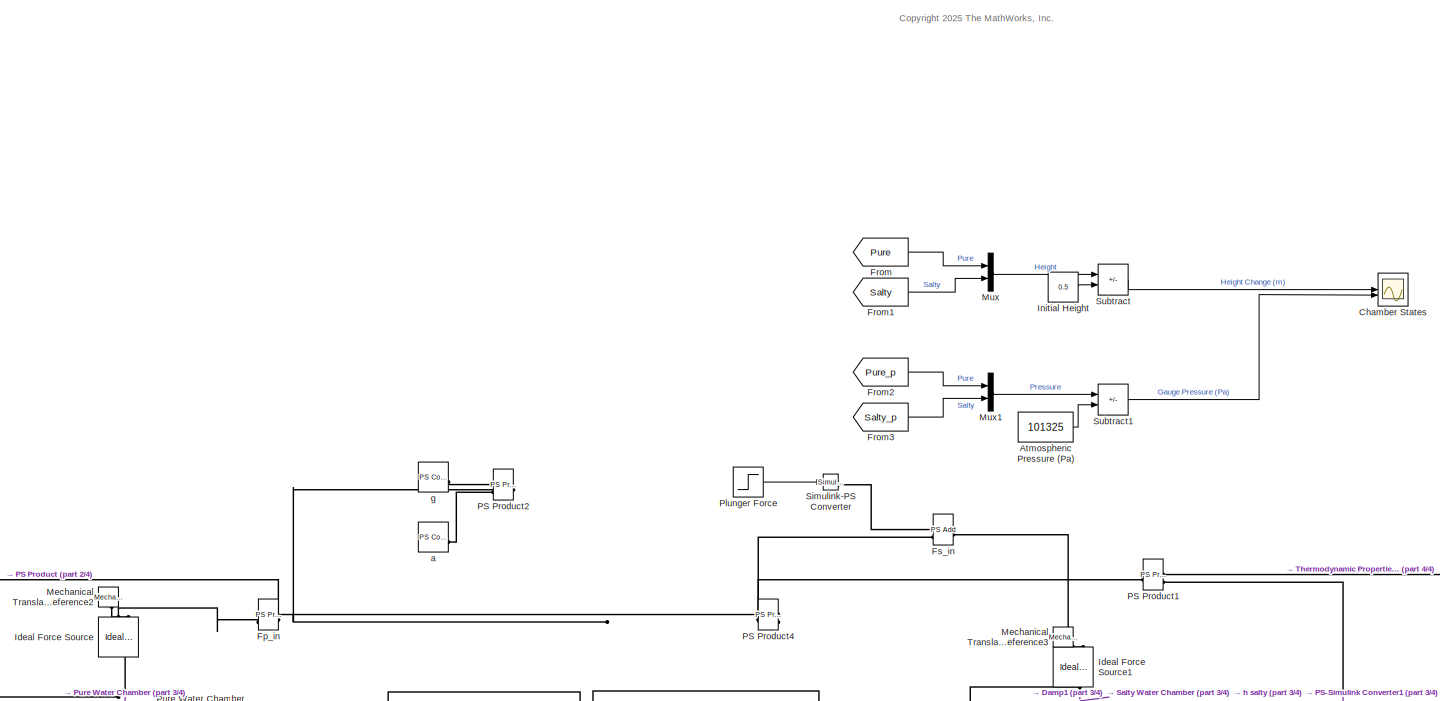
[diagram: root canvas - part 1/4, full width, top band]
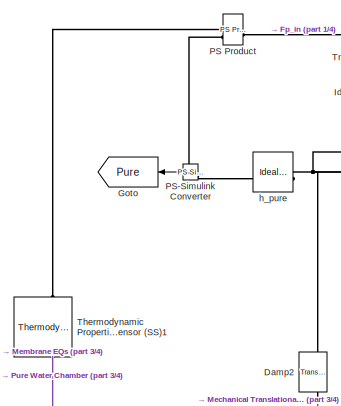
[diagram: root canvas - part 2/4, middle left region]
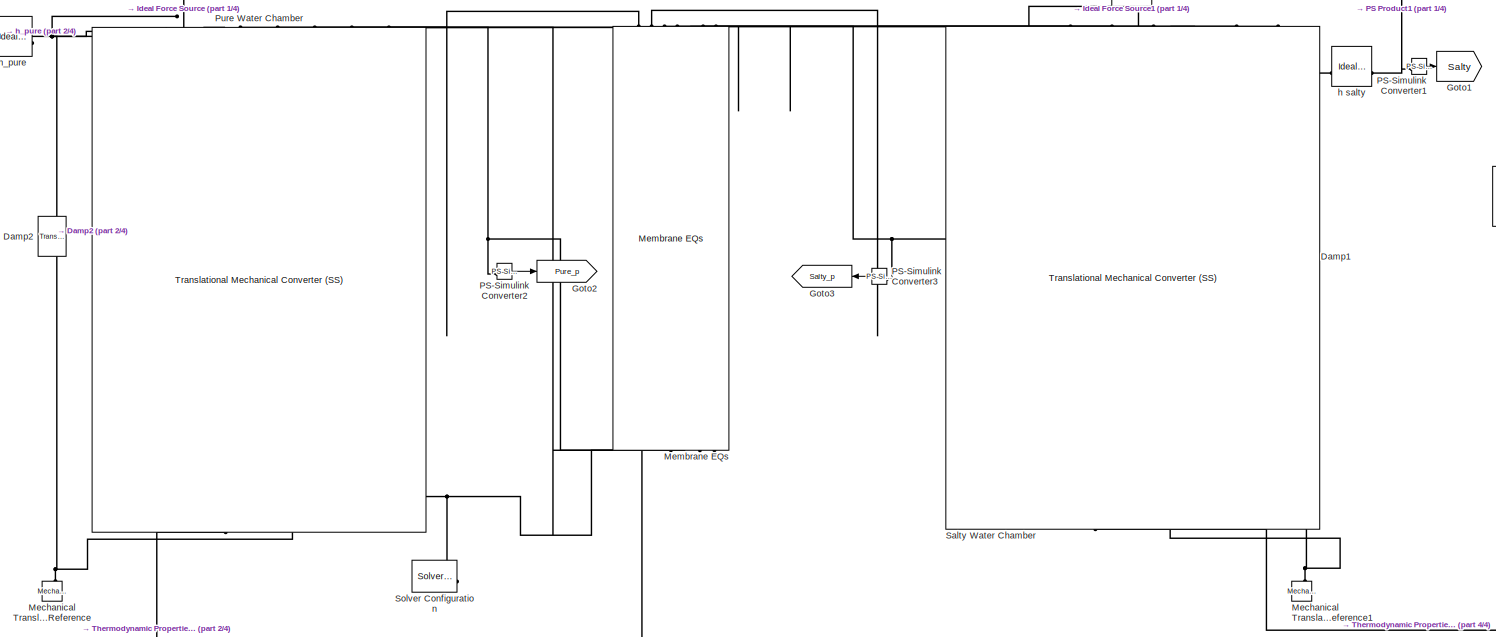
[diagram: root canvas - part 3/4, full width, bottom band]
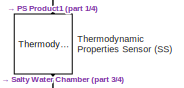
[diagram: root canvas - part 4/4, middle right region]
MODEL slx_f307a61d72fc
KIND model
CONFIG AbsTol = 1e-7
CONFIG EnableMultiTasking = off
CONFIG FixedStep = auto
CONFIG MaxStep = auto
CONFIG MinStep = auto
CONFIG RelTol = 1e-5
CONFIG SampleTimeConstraint = Unconstrained
CONFIG SolverName = VariableStepAuto
CONFIG StartTime = 0.0
CONFIG StopTime = 360
BLOCK [Constant] Atmospheric Pressure (Pa)
  Value = 101325
BLOCK [Scope] Chamber States
  ActiveDisplayString = 2
  ActiveDisplayYMaximum = 6665.5615631627643
  ActiveDisplayYMinimum = 2584.7701229857284
  Floating = off
  GraphicalSettings = {"Style":{"BackgroundColor":[0.12941176470588237,0.12941176470588237,0.12941176470588237],"AxesColor":[0.07058823529411765,0.07058823529411765,0.07058823529411765],"LabelsColor":[0.8509803921568627,0.8509803921568627,0.8509803921568627],"PreserveColors":false,"Visible":[true,true,true,true],"LineStyle":["-","-","-","-"],"LineWidth":[1.5,1.5,1.5,1.5],"BarWidth":[0.9,0.9,0.9,0.9],"LineColor":["auto"...<+2838ch>
  LayoutDimensionsString = [2,1]
  MultipleDisplayCache = [{"MaxYLimMag":0.23603934425517897,"MaxYLimReal":0.18065966916114828,"MinYLimMag":0,"MinYLimReal":-0.23603934425517897,"PlotAsMagnitudePhase":false,"ShowGrid":true,"ShowLegend":true,"Title":"Height (m)","YLabel":""},{"MaxYLimMag":6665.5615631627643,"MaxYLimReal":6665.5615631627643,"MinYLimMag":2584.7701229857284,"MinYLimReal":2584.7701229857284,"PlotAsMagnitudePhase":false,"ShowGrid":true,"ShowLeg...<+53ch>
  NumInputPorts = 2
  ScopeFrameLocation = window
  ShowLegend = on
  Title = Gauge Pressure (Pa)
  WasSavedAsWebScope = on
  WindowPosition = [74.000000,31.000000,1856.000000,1011.000000,]
BLOCK [Reference] Damp1  REF=fl_lib/Mechanical/Translational
Elements/Translational Damper
  NameLocation = right
  SourceBlock = fl_lib/Mechanical/Translational\nElements/Translational Damper
  SourceType = Translational Damper
BLOCK [Reference] Damp2  REF=fl_lib/Mechanical/Translational
Elements/Translational Damper
  NameLocation = right
  SourceBlock = fl_lib/Mechanical/Translational\nElements/Translational Damper
  SourceType = Translational Damper
BLOCK [Reference] Fp_in  REF=fl_lib/Physical Signals/Functions/PS Product
  SourceBlock = fl_lib/Physical Signals/Functions/PS Product
  SourceType = PS Product
BLOCK [From] From
  GotoTag = Pure
BLOCK [From] From1
  GotoTag = Salty
BLOCK [From] From2
  GotoTag = Pure_p
BLOCK [From] From3
  GotoTag = Salty_p
BLOCK [Reference] Fs_in  REF=fl_lib/Physical Signals/Functions/PS Add
  SourceBlock = fl_lib/Physical Signals/Functions/PS Add
  SourceType = PS Add
BLOCK [Goto] Goto
  GotoTag = Pure
  NameLocation = top
BLOCK [Goto] Goto1
  GotoTag = Salty
BLOCK [Goto] Goto2
  GotoTag = Pure_p
BLOCK [Goto] Goto3
  GotoTag = Salty_p
  NameLocation = top
BLOCK [Reference] Ideal Force Source  REF=fl_lib/Mechanical/Mechanical Sources/Ideal Force Source
  NameLocation = left
  SourceBlock = fl_lib/Mechanical/Mechanical Sources/Ideal Force Source
  SourceType = Ideal Force Source
BLOCK [Reference] Ideal Force Source1  REF=fl_lib/Mechanical/Mechanical Sources/Ideal Force Source
  NameLocation = left
  SourceBlock = fl_lib/Mechanical/Mechanical Sources/Ideal Force Source
  SourceType = Ideal Force Source
BLOCK [Constant] Initial Height
  Value = 0.5
BLOCK [Reference] Mechanical Translational Reference  REF=fl_lib/Mechanical/Translational
Elements/Mechanical
Translational
Reference
  NameLocation = right
  SourceBlock = fl_lib/Mechanical/Translational\nElements/Mechanical\nTranslational\nReference
  SourceType = Mechanical\nTranslational\nReference
BLOCK [Reference] Mechanical Translational Reference1  REF=fl_lib/Mechanical/Translational
Elements/Mechanical
Translational
Reference
  NameLocation = right
  SourceBlock = fl_lib/Mechanical/Translational\nElements/Mechanical\nTranslational\nReference
  SourceType = Mechanical\nTranslational\nReference
BLOCK [Reference] Mechanical Translational Reference2  REF=fl_lib/Mechanical/Translational
Elements/Mechanical
Translational
Reference
  NameLocation = left
  SourceBlock = fl_lib/Mechanical/Translational\nElements/Mechanical\nTranslational\nReference
  SourceType = Mechanical\nTranslational\nReference
BLOCK [Reference] Mechanical Translational Reference3  REF=fl_lib/Mechanical/Translational
Elements/Mechanical
Translational
Reference
  NameLocation = left
  SourceBlock = fl_lib/Mechanical/Translational\nElements/Mechanical\nTranslational\nReference
  SourceType = Mechanical\nTranslational\nReference
BLOCK [Reference] Membrane EQs  REF=customization_lib/membranes/Membrane EQs
  NameLocation = right
  SourceBlock = customization_lib/membranes/Membrane EQs
  SourceProductName = Customization
  SourceType = Membrane EQs
BLOCK [Mux] Mux
  DisplayOption = bar
  Inputs = 2
BLOCK [Mux] Mux1
  DisplayOption = bar
  Inputs = 2
BLOCK [Reference] PS Product  REF=fl_lib/Physical Signals/Functions/PS Product
  SourceBlock = fl_lib/Physical Signals/Functions/PS Product
  SourceType = PS Product
BLOCK [Reference] PS Product1  REF=fl_lib/Physical Signals/Functions/PS Product
  SourceBlock = fl_lib/Physical Signals/Functions/PS Product
  SourceType = PS Product
BLOCK [Reference] PS Product2  REF=fl_lib/Physical Signals/Functions/PS Product
  SourceBlock = fl_lib/Physical Signals/Functions/PS Product
  SourceType = PS Product
BLOCK [Reference] PS Product4  REF=fl_lib/Physical Signals/Functions/PS Product
  NameLocation = top
  SourceBlock = fl_lib/Physical Signals/Functions/PS Product
  SourceType = PS Product
BLOCK [Reference] PS-Simulink Converter  REF=nesl_utility/PS-Simulink
Converter
  NameLocation = top
  SourceBlock = nesl_utility/PS-Simulink\nConverter
  SourceType = PS-Simulink\nConverter
BLOCK [Reference] PS-Simulink Converter1  REF=nesl_utility/PS-Simulink
Converter
  SourceBlock = nesl_utility/PS-Simulink\nConverter
  SourceType = PS-Simulink\nConverter
BLOCK [Reference] PS-Simulink Converter2  REF=nesl_utility/PS-Simulink
Converter
  SourceBlock = nesl_utility/PS-Simulink\nConverter
  SourceType = PS-Simulink\nConverter
BLOCK [Reference] PS-Simulink Converter3  REF=nesl_utility/PS-Simulink
Converter
  NameLocation = top
  SourceBlock = nesl_utility/PS-Simulink\nConverter
  SourceType = PS-Simulink\nConverter
BLOCK [Step] Plunger Force
  After = -2
  SampleTime = 0
  Time = 300
BLOCK [Reference] Pure Water Chamber  REF=customization_lib/solution/elements/Translational
Mechanical Converter
(SS)
  NameLocation = left
  SourceBlock = customization_lib/solution/elements/Translational\nMechanical Converter\n(SS)
  SourceProductName = Customization
  SourceType = Translational\nMechanical Converter\n(SS)
BLOCK [Reference] Salty Water Chamber  REF=customization_lib/solution/elements/Translational
Mechanical Converter
(SS)
  NameLocation = right
  SourceBlock = customization_lib/solution/elements/Translational\nMechanical Converter\n(SS)
  SourceProductName = Customization
  SourceType = Translational\nMechanical Converter\n(SS)
BLOCK [Reference] Simulink-PS Converter  REF=nesl_utility/Simulink-PS
Converter
  SourceBlock = nesl_utility/Simulink-PS\nConverter
  SourceType = Simulink-PS\nConverter
BLOCK [Reference] Solver Configuration  REF=nesl_utility/Solver
Configuration
  SourceBlock = nesl_utility/Solver\nConfiguration
  SourceType = Solver\nConfiguration
BLOCK [Sum] Subtract
  IconShape = rectangular
  Inputs = +-
BLOCK [Sum] Subtract1
  IconShape = rectangular
  Inputs = +-
BLOCK [Reference] Thermodynamic Properties Sensor (SS)  REF=customization_lib/solution/sensors/Thermodynamic
Properties Sensor
(SS)
  NameLocation = right
  SourceBlock = customization_lib/solution/sensors/Thermodynamic\nProperties Sensor\n(SS)
  SourceProductName = Customization
  SourceType = Thermodynamic\nProperties Sensor\n(SS)
BLOCK [Reference] Thermodynamic Properties Sensor (SS)1  REF=customization_lib/solution/sensors/Thermodynamic
Properties Sensor
(SS)
  NameLocation = right
  SourceBlock = customization_lib/solution/sensors/Thermodynamic\nProperties Sensor\n(SS)
  SourceProductName = Customization
  SourceType = Thermodynamic\nProperties Sensor\n(SS)
BLOCK [Reference] a  REF=fl_lib/Physical Signals/Sources/PS Constant
  SourceBlock = fl_lib/Physical Signals/Sources/PS Constant
  SourceType = PS Constant
BLOCK [Reference] g  REF=fl_lib/Physical Signals/Sources/PS Constant
  SourceBlock = fl_lib/Physical Signals/Sources/PS Constant
  SourceType = PS Constant
BLOCK [Reference] h salty  REF=fl_lib/Mechanical/Mechanical Sensors/Ideal Translational
Motion Sensor
  SourceBlock = fl_lib/Mechanical/Mechanical Sensors/Ideal Translational\nMotion Sensor
  SourceType = Ideal Translational\nMotion Sensor
BLOCK [Reference] h_pure  REF=fl_lib/Mechanical/Mechanical Sensors/Ideal Translational
Motion Sensor
  SourceBlock = fl_lib/Mechanical/Mechanical Sensors/Ideal Translational\nMotion Sensor
  SourceType = Ideal Translational\nMotion Sensor
ANNOTATION (root): <copyright redacted>
LINE Atmospheric Pressure (Pa):1 -> Subtract1:2
LINE From1:1 -> Mux:2
LINE From2:1 -> Mux1:1
LINE From3:1 -> Mux1:2
LINE From:1 -> Mux:1
LINE Initial Height:1 -> Subtract:2
LINE Mux1:1 -> Subtract1:1
LINE Mux:1 -> Subtract:1
LINE PS-Simulink Converter1:1 -> Goto1:1
LINE PS-Simulink Converter2:1 -> Goto2:1
LINE PS-Simulink Converter3:1 -> Goto3:1
LINE PS-Simulink Converter:1 -> Goto:1
LINE Plunger Force:1 -> Simulink-PS Converter:1
LINE Subtract1:1 -> Chamber States:2
LINE Subtract:1 -> Chamber States:1
PNET net1: Damp1:LConn1 -- Ideal Force Source1:LConn1 -- Salty Water Chamber:RConn1 -- h salty:LConn1
PNET net2: Damp1:RConn1 -- Mechanical Translational Reference1:LConn1 -- Salty Water Chamber:LConn2
PNET net3: Damp2:LConn1 -- Ideal Force Source:LConn1 -- Pure Water Chamber:RConn1 -- h_pure:LConn1
PNET net4: Damp2:RConn1 -- Mechanical Translational Reference:LConn1 -- Pure Water Chamber:LConn2
PNET net5: Fp_in:LConn1 -- PS Product2:RConn1 -- PS Product4:LConn1
PLINE Fp_in:LConn2 -- PS Product:RConn1
PLINE Fp_in:RConn1 -- Ideal Force Source:RConn1
PLINE Fs_in:LConn1 -- Simulink-PS Converter:RConn1
PLINE Fs_in:LConn2 -- PS Product4:RConn1
PLINE Fs_in:RConn1 -- Ideal Force Source1:RConn1
PLINE Ideal Force Source1:RConn2 -- Mechanical Translational Reference3:LConn1
PLINE Ideal Force Source:RConn2 -- Mechanical Translational Reference2:LConn1
PNET net6: Membrane EQs:LConn1 -- Pure Water Chamber:LConn1 -- Thermodynamic Properties Sensor (SS)1:LConn1
PNET net7: Membrane EQs:LConn2 -- Pure Water Chamber:RConn2 -- Solver Configuration:RConn1
PLINE Membrane EQs:LConn3 -- Pure Water Chamber:RConn3
PNET net8: Membrane EQs:LConn4 -- PS-Simulink Converter2:LConn1 -- Pure Water Chamber:RConn5
PLINE Membrane EQs:LConn5 -- Pure Water Chamber:RConn6
PLINE Membrane EQs:LConn6 -- Pure Water Chamber:RConn7
PLINE Membrane EQs:RConn1 -- Pure Water Chamber:RConn4
PLINE Membrane EQs:RConn2 -- Salty Water Chamber:RConn4
PLINE Membrane EQs:RConn3 -- Salty Water Chamber:RConn2
PLINE Membrane EQs:RConn4 -- Salty Water Chamber:RConn3
PNET net9: Membrane EQs:RConn5 -- PS-Simulink Converter3:LConn1 -- Salty Water Chamber:RConn5
PLINE Membrane EQs:RConn6 -- Salty Water Chamber:RConn6
PLINE Membrane EQs:RConn7 -- Salty Water Chamber:RConn7
PLINE PS Product1:LConn1 -- Thermodynamic Properties Sensor (SS):RConn1
PNET net10: PS Product1:LConn2 -- PS-Simulink Converter1:LConn1 -- h salty:RConn1
PLINE PS Product1:RConn1 -- PS Product4:LConn2
PLINE PS Product2:LConn1 -- g:RConn1
PLINE PS Product2:LConn2 -- a:RConn1
PLINE PS Product:LConn1 -- Thermodynamic Properties Sensor (SS)1:RConn1
PNET net11: PS Product:LConn2 -- PS-Simulink Converter:LConn1 -- h_pure:RConn1
PLINE Salty Water Chamber:LConn1 -- Thermodynamic Properties Sensor (SS):LConn1
note: PNET lines group multi-terminal physical nets as a canonical sorted terminal list (undirected conserving connections); 2-terminal nets keep the pairwise PLINE form
